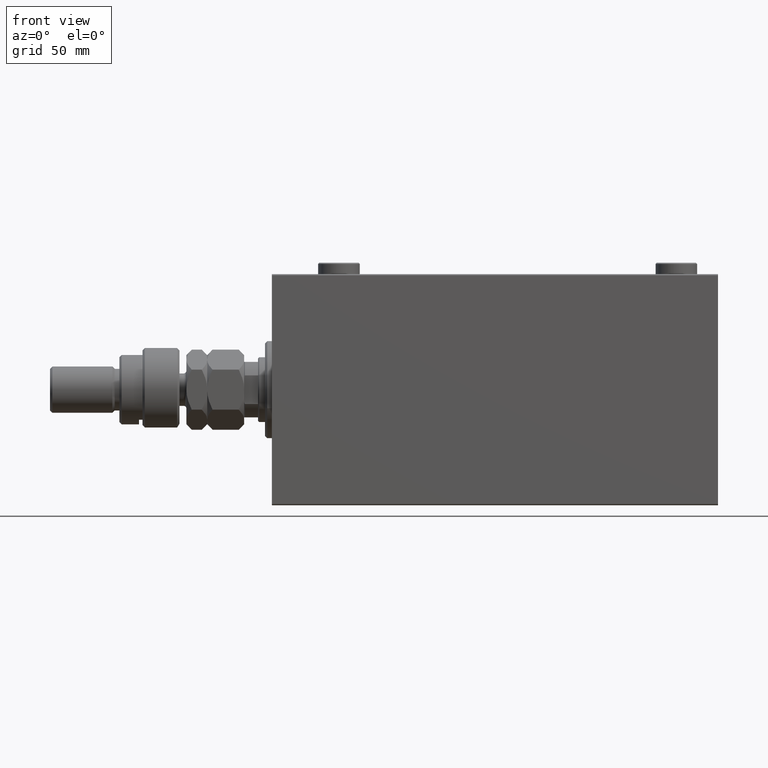
[diagram: clean part render]
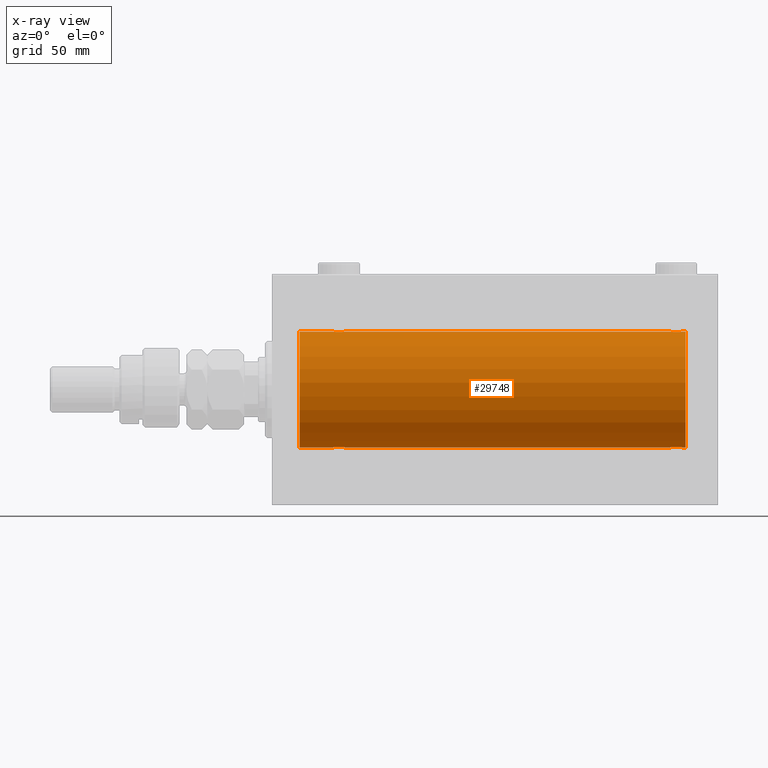
[diagram: x-ray — body ghosted, one internal face saturated and labeled with its STEP entity id]
A machine part, front view, then the same camera in x-ray: the body is ghosted and one INTERNAL B-rep face — a face not visible from any outside direction — is saturated and labeled: STEP entity #29748.
In plain terms, the highlighted cylindrical surface (partial cylindrical patch) has radius 25 mm, axis along (-1, -0, -0).
Its self-contained STEP definition (entity closure, byte-faithful):
#208 = CARTESIAN_POINT ( 'NONE',  ( 26.62784030591392792, -0.8058335233485491855, 24.98746277938382576 ) ) ;
#314 = CARTESIAN_POINT ( 'NONE',  ( 173.0125018416560465, -1.525407911884356205, 24.95379469572361586 ) ) ;
#368 = CYLINDRICAL_SURFACE ( 'NONE', #29054, 25.00000000000000000 ) ;
#445 = CARTESIAN_POINT ( 'NONE',  ( 29.80788342405805480, -2.371528299825740760, -24.88734287464370709 ) ) ;
#542 = CARTESIAN_POINT ( 'NONE',  ( 172.6278403059140203, -0.8058335233485443005, 24.98746277938383287 ) ) ;
#692 = CARTESIAN_POINT ( 'NONE',  ( 31.50000000000000000, 3.061616978460586055E-15, -25.00000000000000000 ) ) ;
#929 = CARTESIAN_POINT ( 'NONE',  ( 30.98749815834398547, -1.525407911884360868, -24.95379469572361941 ) ) ;
#1531 = CARTESIAN_POINT ( 'NONE',  ( 12.00000000000001066, 0.000000000000000000, 25.00000000000000000 ) ) ;
#2097 = CARTESIAN_POINT ( 'NONE',  ( 30.25084023924054932, -2.170728182476720836, 24.90574631553725027 ) ) ;
#2118 = ORIENTED_EDGE ( 'NONE', *, *, #42894, .T. ) ;
#2351 = CARTESIAN_POINT ( 'NONE',  ( 27.88963203491136511, -2.245863995402902269, 24.89899750494197761 ) ) ;
#2721 = ORIENTED_EDGE ( 'NONE', *, *, #18452, .F. ) ;
#2730 = CARTESIAN_POINT ( 'NONE',  ( 172.5000000000000284, -1.405387377138226638E-14, -25.00000000000000000 ) ) ;
#3049 = CARTESIAN_POINT ( 'NONE',  ( 175.6490439016911012, -2.419770561643905804, -24.88263927071751525 ) ) ;
#3131 = B_SPLINE_CURVE_WITH_KNOTS ( 'NONE', 3,
 ( #3389, #18247, #47950, #22367, #18956, #34269, #33783, #929, #41105, #3625, #44529, #30610, #37213, #445, #19189, #30382, #22842, #4102, #8461, #3859, #4577, #8222, #29898, #36971, #29669, #15296, #12113, #26015, #11650, #48195, #15780, #45480 ),
 .UNSPECIFIED., .F., .F.,
 ( 4, 2, 2, 2, 2, 2, 2, 2, 2, 2, 2, 2, 2, 2, 2, 4 ),
 ( 0.007821024441662306759, 0.008309723826317914896, 0.008798423210973524769, 0.009287122595629129437, 0.009775821980284734106, 0.01026452136494033877, 0.01075322074959594344, 0.01124192013425154985, 0.01173061951890715451, 0.01221931890356275918, 0.01270801828821836385, 0.01319671767287396852, 0.01368541705752957492, 0.01417411644218518132, 0.01466281582684078599, 0.01564021459615200227 ),
 .UNSPECIFIED. ) ;
#3182 = CARTESIAN_POINT ( 'NONE',  ( 26.50000000000000355, -1.940558383798427991E-23, 25.00000000000000000 ) ) ;
#3184 = ORIENTED_EDGE ( 'NONE', *, *, #40856, .T. ) ;
#3297 = CARTESIAN_POINT ( 'NONE',  ( 177.3721596940860366, -0.8058335233485425242, -24.98746277938382221 ) ) ;
#3389 = CARTESIAN_POINT ( 'NONE',  ( 31.50000000000000000, 3.061616978460586055E-15, -25.00000000000000000 ) ) ;
#3530 = CARTESIAN_POINT ( 'NONE',  ( 174.3543933385137450, -2.420689345803768155, -24.88254961038873603 ) ) ;
#3625 = CARTESIAN_POINT ( 'NONE',  ( 30.65383336149337623, -1.881857718844712979, -24.92933960374833902 ) ) ;
#3725 = CARTESIAN_POINT ( 'NONE',  ( 172.5000000000000853, -0.1631750940176186493, 25.00000000000001066 ) ) ;
#3848 = CARTESIAN_POINT ( 'NONE',  ( 26.50000000000000355, -1.940558383798427991E-23, 25.00000000000000000 ) ) ;
#3859 = CARTESIAN_POINT ( 'NONE',  ( 28.35439333851368104, -2.420689345803754833, -24.88254961038873248 ) ) ;
#4024 = VERTEX_POINT ( 'NONE', #47860 ) ;
#4102 = CARTESIAN_POINT ( 'NONE',  ( 28.83676410361456988, -2.500125740978188738, -24.87467329022545570 ) ) ;
#4352 = DIRECTION ( 'NONE',  ( -1.000000000000000000, -0.000000000000000000, -0.000000000000000000 ) ) ;
#4529 = B_SPLINE_CURVE_WITH_KNOTS ( 'NONE', 3,
 ( #37069, #3725, #7618, #22464, #542, #22706, #15642, #314, #44391, #34118, #11511, #29996, #41205, #11275, #44866, #15397, #10795, #18579, #30235, #21990, #26591, #41443, #8090, #33166, #22935, #25634, #36830, #48052, #14679, #29526, #11045, #42146 ),
 .UNSPECIFIED., .F., .F.,
 ( 4, 2, 2, 2, 2, 2, 2, 2, 2, 2, 2, 2, 2, 2, 2, 4 ),
 ( 0.007821024441662296350, 0.008309723826317906223, 0.008798423210973516095, 0.009287122595629124233, 0.009775821980284732371, 0.01026452136494034224, 0.01075322074959595212, 0.01124192013425156025, 0.01173061951890716839, 0.01221931890356277826, 0.01270801828821838814, 0.01319671767287399627, 0.01368541705752960788, 0.01417411644218521602, 0.01466281582684082589, 0.01564021459615201268 ),
 .UNSPECIFIED. ) ;
#4577 = CARTESIAN_POINT ( 'NONE',  ( 28.19564339083698457, -2.372734907014167227, -24.88722742718433878 ) ) ;
#5026 = CARTESIAN_POINT ( 'NONE',  ( 27.34616663850663443, -1.881857718844720528, 24.92933960374834967 ) ) ;
#5543 = CARTESIAN_POINT ( 'NONE',  ( 179.0000000000000000, 3.061616997868382254E-15, -25.00000000000000000 ) ) ;
#5559 = EDGE_CURVE ( 'NONE', #10784, #43455, #15232, .T. ) ;
#5627 = VERTEX_POINT ( 'NONE', #30771 ) ;
#5754 = CARTESIAN_POINT ( 'NONE',  ( 29.32596570039460104, -2.484007091859765204, 24.87630842367763506 ) ) ;
#5978 = LINE ( 'NONE', #29825, #16130 ) ;
#5988 = CARTESIAN_POINT ( 'NONE',  ( 30.88185954148647028, -1.653834020452937592, 24.94550385189585029 ) ) ;
#6094 = ORIENTED_EDGE ( 'NONE', *, *, #30672, .T. ) ;
#6272 = LINE ( 'NONE', #5543, #17013 ) ;
#6324 = AXIS2_PLACEMENT_3D ( 'NONE', #31363, #28447, #34777 ) ;
#6694 = CARTESIAN_POINT ( 'NONE',  ( 176.1103679650886988, -2.245863995402892943, -24.89899750494197406 ) ) ;
#7618 = CARTESIAN_POINT ( 'NONE',  ( 172.5158215994234752, -0.3254210271412208977, 24.99840249400844527 ) ) ;
#8090 = CARTESIAN_POINT ( 'NONE',  ( 176.2508402392405458, -2.170728182476725276, 24.90574631553724672 ) ) ;
#8222 = CARTESIAN_POINT ( 'NONE',  ( 27.89276154161589716, -2.247417070759890390, -24.89885693081946982 ) ) ;
#8317 = EDGE_CURVE ( 'NONE', #8360, #36444, #3131, .T. ) ;
#8360 = VERTEX_POINT ( 'NONE', #692 ) ;
#8461 = CARTESIAN_POINT ( 'NONE',  ( 28.67403429960540251, -2.484007091859758098, -24.87630842367763151 ) ) ;
#8539 = CARTESIAN_POINT ( 'NONE',  ( 177.5000000000000568, 1.404322005998729010E-15, 25.00000000000000000 ) ) ;
#8622 = DIRECTION ( 'NONE',  ( 0.000000000000000000, 0.000000000000000000, 1.000000000000000000 ) ) ;
#9194 = EDGE_CURVE ( 'NONE', #48076, #4024, #26510, .T. ) ;
#10463 = EDGE_CURVE ( 'NONE', #5627, #42346, #24485, .T. ) ;
#10595 = CARTESIAN_POINT ( 'NONE',  ( 174.8367641036146551, -2.500125740978199840, -24.87467329022544504 ) ) ;
#10784 = VERTEX_POINT ( 'NONE', #3182 ) ;
#10795 = CARTESIAN_POINT ( 'NONE',  ( 174.8329350482194116, -2.499872792855079240, 24.87469871246083031 ) ) ;
#10843 = CARTESIAN_POINT ( 'NONE',  ( 175.8078834240581614, -2.371528299825743868, -24.88734287464371420 ) ) ;
#11045 = CARTESIAN_POINT ( 'NONE',  ( 177.5000000000000568, -0.3305063766663748903, 24.99999999999999289 ) ) ;
#11088 = CARTESIAN_POINT ( 'NONE',  ( 174.6740342996054380, -2.484007091859770089, -24.87630842367762796 ) ) ;
#11275 = CARTESIAN_POINT ( 'NONE',  ( 174.1921165759419523, -2.371528299825747421, 24.88734287464370709 ) ) ;
#11511 = CARTESIAN_POINT ( 'NONE',  ( 173.4746381775692612, -1.987446652080256948, 24.92104239223420592 ) ) ;
#11650 = CARTESIAN_POINT ( 'NONE',  ( 26.75393620905932934, -1.109818057797413493, -24.97580694515541921 ) ) ;
#11872 = CARTESIAN_POINT ( 'NONE',  ( 26.51582159942343253, -0.3254210271412225075, 24.99840249400844527 ) ) ;
#12113 = CARTESIAN_POINT ( 'NONE',  ( 27.01461966282905891, -1.528152964861305696, -24.95362559291378801 ) ) ;
#12586 = CARTESIAN_POINT ( 'NONE',  ( 29.64560666148631896, -2.420689345803760606, 24.88254961038873958 ) ) ;
#13091 = VECTOR ( 'NONE', #47641, 1000.000000000000000 ) ;
#13544 = CARTESIAN_POINT ( 'NONE',  ( 26.50000000000000355, -1.044046902370982825E-15, -25.00000000000000000 ) ) ;
#13550 = CARTESIAN_POINT ( 'NONE',  ( 28.67052319885731393, -2.483544361357271413, 24.87635491893501793 ) ) ;
#14248 = CARTESIAN_POINT ( 'NONE',  ( 173.3487886644088860, -1.884161199660627783, -24.92916496727982079 ) ) ;
#14441 = ORIENTED_EDGE ( 'NONE', *, *, #23900, .F. ) ;
#14483 = CARTESIAN_POINT ( 'NONE',  ( 177.2476025101955486, -1.106703319666879848, -24.97594585958023572 ) ) ;
#14623 = CARTESIAN_POINT ( 'NONE',  ( 179.0000000000000000, 0.000000000000000000, 25.00000000000000000 ) ) ;
#14679 = CARTESIAN_POINT ( 'NONE',  ( 177.2460637909407524, -1.109818057797409718, 24.97580694515542632 ) ) ;
#14728 = CARTESIAN_POINT ( 'NONE',  ( 172.7539362090593897, -1.109818057797422375, -24.97580694515542632 ) ) ;
#14756 = CARTESIAN_POINT ( 'NONE',  ( 179.0000000000000000, 0.000000000000000000, 25.00000000000000000 ) ) ;
#15232 = LINE ( 'NONE', #14756, #13091 ) ;
#15296 = CARTESIAN_POINT ( 'NONE',  ( 27.11814045851354749, -1.653834020452933373, -24.94550385189585739 ) ) ;
#15397 = CARTESIAN_POINT ( 'NONE',  ( 174.6705231988573530, -2.483544361357268304, 24.87635491893501793 ) ) ;
#15594 = VECTOR ( 'NONE', #17036, 1000.000000000000000 ) ;
#15642 = CARTESIAN_POINT ( 'NONE',  ( 172.8298870971908343, -1.252049606094326695, 24.96900299967627390 ) ) ;
#15780 = CARTESIAN_POINT ( 'NONE',  ( 26.50000000000000000, -0.3305063766663753899, -24.99999999999999645 ) ) ;
#16130 = VECTOR ( 'NONE', #25696, 1000.000000000000000 ) ;
#16351 = DIRECTION ( 'NONE',  ( 0.000000000000000000, 0.000000000000000000, 1.000000000000000000 ) ) ;
#16785 = B_SPLINE_CURVE_WITH_KNOTS ( 'NONE', 3,
 ( #3848, #18709, #11872, #23062, #208, #37915, #23766, #42774, #31068, #5026, #38390, #24494, #2351, #17198, #45942, #13550, #16955, #39113, #5754, #12586, #35694, #38621, #2097, #27422, #46179, #5988, #42276, #31794, #32033, #28156, #20606, #42040 ),
 .UNSPECIFIED., .F., .F.,
 ( 4, 2, 2, 2, 2, 2, 2, 2, 2, 2, 2, 2, 2, 2, 2, 4 ),
 ( 0.007821024441662294616, 0.008309723826317901019, 0.008798423210973509156, 0.009287122595629115560, 0.009775821980284721963, 0.01026452136494032837, 0.01075322074959593477, 0.01124192013425154291, 0.01173061951890714757, 0.01221931890356275571, 0.01270801828821836212, 0.01319671767287396852, 0.01368541705752957666, 0.01417411644218518479, 0.01466281582684079120, 0.01564021459615200574 ),
 .UNSPECIFIED. ) ;
#16955 = CARTESIAN_POINT ( 'NONE',  ( 28.83293504821940445, -2.499872792855083681, 24.87469871246083031 ) ) ;
#17013 = VECTOR ( 'NONE', #17237, 1000.000000000000000 ) ;
#17036 = DIRECTION ( 'NONE',  ( -1.000000000000000000, -0.000000000000000000, -0.000000000000000000 ) ) ;
#17198 = CARTESIAN_POINT ( 'NONE',  ( 28.19211657594193809, -2.371528299825748753, 24.88734287464370709 ) ) ;
#17237 = DIRECTION ( 'NONE',  ( -1.000000000000000000, -0.000000000000000000, -0.000000000000000000 ) ) ;
#17660 = CARTESIAN_POINT ( 'NONE',  ( 177.4841784005766101, -0.3254210271412171229, -24.99840249400844527 ) ) ;
#18152 = CARTESIAN_POINT ( 'NONE',  ( 172.5000000000000284, -1.405387377138226638E-14, -25.00000000000000000 ) ) ;
#18247 = CARTESIAN_POINT ( 'NONE',  ( 31.49999999999998579, -0.1631750940176181774, -25.00000000000000355 ) ) ;
#18384 = CARTESIAN_POINT ( 'NONE',  ( 172.5000000000000853, -0.3305063766663885461, -25.00000000000001066 ) ) ;
#18452 = EDGE_CURVE ( 'NONE', #27088, #42459, #38952, .T. ) ;
#18579 = CARTESIAN_POINT ( 'NONE',  ( 175.1632358963854585, -2.500125740978193178, 24.87467329022544504 ) ) ;
#18709 = CARTESIAN_POINT ( 'NONE',  ( 26.50000000000000355, -0.1631750940176212028, 25.00000000000000355 ) ) ;
#18793 = CIRCLE ( 'NONE', #6324, 25.00000000000000000 ) ;
#18956 = CARTESIAN_POINT ( 'NONE',  ( 31.37215969408608274, -0.8058335233485440785, -24.98746277938383997 ) ) ;
#19189 = CARTESIAN_POINT ( 'NONE',  ( 29.64904390169096970, -2.419770561643903584, -24.88263927071751525 ) ) ;
#20606 = CARTESIAN_POINT ( 'NONE',  ( 31.50000000000000000, -0.3305063766663733360, 25.00000000000000000 ) ) ;
#21546 = CARTESIAN_POINT ( 'NONE',  ( 176.6538333614934402, -1.881857718844723415, -24.92933960374834257 ) ) ;
#21990 = CARTESIAN_POINT ( 'NONE',  ( 175.6456066614863403, -2.420689345803761938, 24.88254961038872892 ) ) ;
#22037 = CARTESIAN_POINT ( 'NONE',  ( 173.0146196628291193, -1.528152964861322793, -24.95362559291379156 ) ) ;
#22367 = CARTESIAN_POINT ( 'NONE',  ( 31.42014909220928942, -0.6480119923854199548, -24.99212088949390775 ) ) ;
#22464 = CARTESIAN_POINT ( 'NONE',  ( 172.5798509077907568, -0.6480119923854213981, 24.99212088949391131 ) ) ;
#22566 = DIRECTION ( 'NONE',  ( -1.000000000000000000, -0.000000000000000000, -0.000000000000000000 ) ) ;
#22706 = CARTESIAN_POINT ( 'NONE',  ( 172.7523974898044798, -1.106703319666880958, 24.97594585958023217 ) ) ;
#22842 = CARTESIAN_POINT ( 'NONE',  ( 29.16706495178059910, -2.499872792855075687, -24.87469871246082320 ) ) ;
#22935 = CARTESIAN_POINT ( 'NONE',  ( 176.6512113355912277, -1.884161199660621344, 24.92916496727982789 ) ) ;
#23062 = CARTESIAN_POINT ( 'NONE',  ( 26.57985090779071058, -0.6480119923854229524, 24.99212088949391131 ) ) ;
#23318 = ORIENTED_EDGE ( 'NONE', *, *, #5559, .F. ) ;
#23382 = VERTEX_POINT ( 'NONE', #45936 ) ;
#23469 = CARTESIAN_POINT ( 'NONE',  ( 179.0000000000000000, 0.000000000000000000, 0.000000000000000000 ) ) ;
#23766 = CARTESIAN_POINT ( 'NONE',  ( 26.82988709719076681, -1.252049606094339351, 24.96900299967627390 ) ) ;
#23900 = EDGE_CURVE ( 'NONE', #35274, #27088, #18793, .T. ) ;
#24309 = EDGE_CURVE ( 'NONE', #10784, #4024, #16785, .T. ) ;
#24485 = B_SPLINE_CURVE_WITH_KNOTS ( 'NONE', 3,
 ( #47127, #43946, #17660, #25683, #3297, #14483, #47613, #40054, #28850, #21546, #33218, #40777, #6694, #10843, #3049, #37114, #36876, #10595, #11088, #3530, #25191, #47375, #43706, #47856, #14248, #43467, #22037, #25433, #14728, #29326, #18384, #18152 ),
 .UNSPECIFIED., .F., .F.,
 ( 4, 2, 2, 2, 2, 2, 2, 2, 2, 2, 2, 2, 2, 2, 2, 4 ),
 ( 0.007821024441662285942, 0.008309723826317894080, 0.008798423210973503952, 0.009287122595629112090, 0.009775821980284720228, 0.01026452136494033010, 0.01075322074959593824, 0.01124192013425154638, 0.01173061951890715451, 0.01221931890356276265, 0.01270801828821837426, 0.01319671767287398240, 0.01368541705752959053, 0.01417411644218519867, 0.01466281582684080681, 0.01564021459615199186 ),
 .UNSPECIFIED. ) ;
#24494 = CARTESIAN_POINT ( 'NONE',  ( 27.74616804575498463, -2.169003991399872433, 24.90589728951139392 ) ) ;
#25191 = CARTESIAN_POINT ( 'NONE',  ( 174.1956433908370343, -2.372734907014177885, -24.88722742718433523 ) ) ;
#25433 = CARTESIAN_POINT ( 'NONE',  ( 172.8317235850605300, -1.255214705003193432, -24.96884293994577675 ) ) ;
#25634 = CARTESIAN_POINT ( 'NONE',  ( 176.8818595414865058, -1.653834020452942477, 24.94550385189585029 ) ) ;
#25683 = CARTESIAN_POINT ( 'NONE',  ( 177.4201490922093285, -0.6480119923854171793, -24.99212088949391131 ) ) ;
#25696 = DIRECTION ( 'NONE',  ( -1.000000000000000000, -0.000000000000000000, -0.000000000000000000 ) ) ;
#26015 = CARTESIAN_POINT ( 'NONE',  ( 26.83172358506043409, -1.255214705003176112, -24.96884293994578385 ) ) ;
#26510 = LINE ( 'NONE', #34041, #33964 ) ;
#26591 = CARTESIAN_POINT ( 'NONE',  ( 175.8043566091631078, -2.372734907014173000, 24.88722742718433878 ) ) ;
#27088 = VERTEX_POINT ( 'NONE', #14623 ) ;
#27126 = ORIENTED_EDGE ( 'NONE', *, *, #9194, .F. ) ;
#27422 = CARTESIAN_POINT ( 'NONE',  ( 30.52256774340189338, -1.989585286700246813, 24.92087098724766037 ) ) ;
#28156 = CARTESIAN_POINT ( 'NONE',  ( 31.43349355239748277, -0.6588655613945849643, 24.99312727339970053 ) ) ;
#28447 = DIRECTION ( 'NONE',  ( -1.000000000000000000, 0.000000000000000000, 0.000000000000000000 ) ) ;
#28850 = CARTESIAN_POINT ( 'NONE',  ( 176.8841238278647552, -1.651251241585108165, -24.94567559498349141 ) ) ;
#29054 = AXIS2_PLACEMENT_3D ( 'NONE', #23469, #30295, #8622 ) ;
#29326 = CARTESIAN_POINT ( 'NONE',  ( 172.5665064476025066, -0.6588655613945925138, -24.99312727339970408 ) ) ;
#29526 = CARTESIAN_POINT ( 'NONE',  ( 177.4334935523975787, -0.6588655613945811895, 24.99312727339969697 ) ) ;
#29669 = CARTESIAN_POINT ( 'NONE',  ( 27.34878866440888245, -1.884161199660611574, -24.92916496727982079 ) ) ;
#29748 = ADVANCED_FACE ( 'NONE', ( #37614 ), #368, .F. ) ;
#29825 = CARTESIAN_POINT ( 'NONE',  ( 179.0000000000000000, 3.061616997868382254E-15, -25.00000000000000000 ) ) ;
#29898 = CARTESIAN_POINT ( 'NONE',  ( 27.74915976075944712, -2.170728182476712842, -24.90574631553725027 ) ) ;
#29996 = CARTESIAN_POINT ( 'NONE',  ( 173.7461680457549846, -2.169003991399866216, 24.90589728951138682 ) ) ;
#30235 = CARTESIAN_POINT ( 'NONE',  ( 175.3259657003945904, -2.484007091859763872, 24.87630842367762796 ) ) ;
#30295 = DIRECTION ( 'NONE',  ( -1.000000000000000000, -0.000000000000000000, -0.000000000000000000 ) ) ;
#30382 = CARTESIAN_POINT ( 'NONE',  ( 29.32947680114268962, -2.483544361357263863, -24.87635491893501083 ) ) ;
#30610 = CARTESIAN_POINT ( 'NONE',  ( 30.25383195424502603, -2.169003991399864439, -24.90589728951138326 ) ) ;
#30672 = EDGE_CURVE ( 'NONE', #42346, #8360, #37418, .T. ) ;
#30771 = CARTESIAN_POINT ( 'NONE',  ( 177.5000000000000568, 3.061616978453880738E-15, -25.00000000000000000 ) ) ;
#31068 = CARTESIAN_POINT ( 'NONE',  ( 27.11587617213528745, -1.651251241585106166, 24.94567559498348430 ) ) ;
#31363 = CARTESIAN_POINT ( 'NONE',  ( 179.0000000000000000, 0.000000000000000000, 0.000000000000000000 ) ) ;
#31772 = ORIENTED_EDGE ( 'NONE', *, *, #8317, .T. ) ;
#31794 = CARTESIAN_POINT ( 'NONE',  ( 31.16827641493957302, -1.255214705003178777, 24.96884293994577675 ) ) ;
#32033 = CARTESIAN_POINT ( 'NONE',  ( 31.24606379094067776, -1.109818057797414381, 24.97580694515543343 ) ) ;
#32640 = ORIENTED_EDGE ( 'NONE', *, *, #36064, .T. ) ;
#33023 = EDGE_LOOP ( 'NONE', ( #14441, #3184, #34511, #6094, #31772, #2118, #36198, #23318, #37092, #27126, #32640, #2721 ) ) ;
#33166 = CARTESIAN_POINT ( 'NONE',  ( 176.5225677434019076, -1.989585286700252809, 24.92087098724766747 ) ) ;
#33218 = CARTESIAN_POINT ( 'NONE',  ( 176.5253618224308525, -1.987446652080262943, -24.92104239223420592 ) ) ;
#33783 = CARTESIAN_POINT ( 'NONE',  ( 31.17011290280924385, -1.252049606094333800, -24.96900299967627390 ) ) ;
#33964 = VECTOR ( 'NONE', #4352, 1000.000000000000000 ) ;
#34041 = CARTESIAN_POINT ( 'NONE',  ( 179.0000000000000000, 0.000000000000000000, 25.00000000000000000 ) ) ;
#34118 = CARTESIAN_POINT ( 'NONE',  ( 173.3461666385066451, -1.881857718844717642, 24.92933960374833546 ) ) ;
#34269 = CARTESIAN_POINT ( 'NONE',  ( 31.24760251019550594, -1.106703319666880736, -24.97594585958023572 ) ) ;
#34407 = CARTESIAN_POINT ( 'NONE',  ( 179.0000000000000000, 3.061616997868382254E-15, -25.00000000000000000 ) ) ;
#34511 = ORIENTED_EDGE ( 'NONE', *, *, #10463, .T. ) ;
#34777 = DIRECTION ( 'NONE',  ( 0.000000000000000000, 0.000000000000000000, 1.000000000000000000 ) ) ;
#35274 = VERTEX_POINT ( 'NONE', #34407 ) ;
#35694 = CARTESIAN_POINT ( 'NONE',  ( 29.80435660916302609, -2.372734907014173888, 24.88722742718433878 ) ) ;
#36064 = EDGE_CURVE ( 'NONE', #48076, #42459, #4529, .T. ) ;
#36198 = ORIENTED_EDGE ( 'NONE', *, *, #41238, .T. ) ;
#36444 = VERTEX_POINT ( 'NONE', #13544 ) ;
#36830 = CARTESIAN_POINT ( 'NONE',  ( 176.9853803371709944, -1.528152964861297258, 24.95362559291378446 ) ) ;
#36876 = CARTESIAN_POINT ( 'NONE',  ( 175.1670649517807306, -2.499872792855085013, -24.87469871246083031 ) ) ;
#36971 = CARTESIAN_POINT ( 'NONE',  ( 27.47743225659811017, -1.989585286700239486, -24.92087098724765326 ) ) ;
#37069 = CARTESIAN_POINT ( 'NONE',  ( 172.5000000000000284, -1.941505016884693205E-23, 25.00000000000000000 ) ) ;
#37092 = ORIENTED_EDGE ( 'NONE', *, *, #24309, .T. ) ;
#37114 = CARTESIAN_POINT ( 'NONE',  ( 175.3294768011428175, -2.483544361357270969, -24.87635491893502149 ) ) ;
#37213 = CARTESIAN_POINT ( 'NONE',  ( 30.11036796508863844, -2.245863995402894719, -24.89899750494197406 ) ) ;
#37418 = LINE ( 'NONE', #44727, #44644 ) ;
#37614 = FACE_OUTER_BOUND ( 'NONE', #33023, .T. ) ;
#37915 = CARTESIAN_POINT ( 'NONE',  ( 26.75239748980448340, -1.106703319666886731, 24.97594585958023572 ) ) ;
#38390 = CARTESIAN_POINT ( 'NONE',  ( 27.47463817756919724, -1.987446652080264275, 24.92104239223420592 ) ) ;
#38465 = CARTESIAN_POINT ( 'NONE',  ( 179.0000000000000000, 0.000000000000000000, 25.00000000000000000 ) ) ;
#38621 = CARTESIAN_POINT ( 'NONE',  ( 30.10723845838410639, -2.247417070759895719, 24.89885693081946272 ) ) ;
#38743 = DIRECTION ( 'NONE',  ( -1.000000000000000000, 0.000000000000000000, 0.000000000000000000 ) ) ;
#38952 = LINE ( 'NONE', #38465, #15594 ) ;
#39113 = CARTESIAN_POINT ( 'NONE',  ( 29.16323589638543723, -2.500125740978196731, 24.87467329022545570 ) ) ;
#40054 = CARTESIAN_POINT ( 'NONE',  ( 176.9874981583440672, -1.525407911884359535, -24.95379469572363007 ) ) ;
#40777 = CARTESIAN_POINT ( 'NONE',  ( 176.2538319542450722, -2.169003991399872433, -24.90589728951138326 ) ) ;
#40856 = EDGE_CURVE ( 'NONE', #35274, #5627, #5978, .T. ) ;
#41105 = CARTESIAN_POINT ( 'NONE',  ( 30.88412382786472321, -1.651251241585099061, -24.94567559498349496 ) ) ;
#41205 = CARTESIAN_POINT ( 'NONE',  ( 173.8896320349113864, -2.245863995402900049, 24.89899750494197050 ) ) ;
#41238 = EDGE_CURVE ( 'NONE', #23382, #43455, #44943, .T. ) ;
#41443 = CARTESIAN_POINT ( 'NONE',  ( 176.1072384583841028, -2.247417070759893942, 24.89885693081946627 ) ) ;
#41974 = CARTESIAN_POINT ( 'NONE',  ( 172.5000000000000284, -1.941505016884693205E-23, 25.00000000000000000 ) ) ;
#42040 = CARTESIAN_POINT ( 'NONE',  ( 31.50000000000000000, -4.224067783497237755E-16, 25.00000000000000000 ) ) ;
#42146 = CARTESIAN_POINT ( 'NONE',  ( 177.5000000000000568, 1.404322005998729010E-15, 25.00000000000000000 ) ) ;
#42276 = CARTESIAN_POINT ( 'NONE',  ( 30.98538033717095530, -1.528152964861310359, 24.95362559291379156 ) ) ;
#42346 = VERTEX_POINT ( 'NONE', #2730 ) ;
#42459 = VERTEX_POINT ( 'NONE', #8539 ) ;
#42597 = AXIS2_PLACEMENT_3D ( 'NONE', #45356, #38743, #16351 ) ;
#42774 = CARTESIAN_POINT ( 'NONE',  ( 27.01250184165601809, -1.525407911884366863, 24.95379469572362297 ) ) ;
#42894 = EDGE_CURVE ( 'NONE', #36444, #23382, #6272, .T. ) ;
#43455 = VERTEX_POINT ( 'NONE', #1531 ) ;
#43467 = CARTESIAN_POINT ( 'NONE',  ( 173.1181404585136079, -1.653834020452949805, -24.94550385189584674 ) ) ;
#43706 = CARTESIAN_POINT ( 'NONE',  ( 173.7491597607594542, -2.170728182476731938, -24.90574631553725027 ) ) ;
#43946 = CARTESIAN_POINT ( 'NONE',  ( 177.5000000000000568, -0.1631750940176158182, -25.00000000000000000 ) ) ;
#44391 = CARTESIAN_POINT ( 'NONE',  ( 173.1158761721353585, -1.651251241585103724, 24.94567559498349141 ) ) ;
#44529 = CARTESIAN_POINT ( 'NONE',  ( 30.52536182243081342, -1.987446652080257392, -24.92104239223420592 ) ) ;
#44644 = VECTOR ( 'NONE', #22566, 1000.000000000000000 ) ;
#44727 = CARTESIAN_POINT ( 'NONE',  ( 179.0000000000000000, 3.061616997868382254E-15, -25.00000000000000000 ) ) ;
#44866 = CARTESIAN_POINT ( 'NONE',  ( 174.3509560983091262, -2.419770561643906248, 24.88263927071751169 ) ) ;
#44943 = CIRCLE ( 'NONE', #42597, 25.00000000000000000 ) ;
#45356 = CARTESIAN_POINT ( 'NONE',  ( 12.00000000000001066, 0.000000000000000000, 0.000000000000000000 ) ) ;
#45480 = CARTESIAN_POINT ( 'NONE',  ( 26.50000000000000355, -1.044046902370982825E-15, -25.00000000000000000 ) ) ;
#45936 = CARTESIAN_POINT ( 'NONE',  ( 12.00000000000001066, 3.061616997868382254E-15, -25.00000000000000000 ) ) ;
#45942 = CARTESIAN_POINT ( 'NONE',  ( 28.35095609830903740, -2.419770561643910689, 24.88263927071751169 ) ) ;
#46179 = CARTESIAN_POINT ( 'NONE',  ( 30.65121133559112820, -1.884161199660616459, 24.92916496727982434 ) ) ;
#47127 = CARTESIAN_POINT ( 'NONE',  ( 177.5000000000000568, 3.061616978453880738E-15, -25.00000000000000000 ) ) ;
#47375 = CARTESIAN_POINT ( 'NONE',  ( 173.8927615416159540, -2.247417070759900604, -24.89885693081946627 ) ) ;
#47613 = CARTESIAN_POINT ( 'NONE',  ( 177.1701129028093078, -1.252049606094329581, -24.96900299967627745 ) ) ;
#47641 = DIRECTION ( 'NONE',  ( -1.000000000000000000, -0.000000000000000000, -0.000000000000000000 ) ) ;
#47856 = CARTESIAN_POINT ( 'NONE',  ( 173.4774322565981777, -1.989585286700259248, -24.92087098724765681 ) ) ;
#47860 = CARTESIAN_POINT ( 'NONE',  ( 31.50000000000000000, -4.224067783497237755E-16, 25.00000000000000000 ) ) ;
#47950 = CARTESIAN_POINT ( 'NONE',  ( 31.48417840057656747, -0.3254210271412201205, -24.99840249400844527 ) ) ;
#48052 = CARTESIAN_POINT ( 'NONE',  ( 177.1682764149396121, -1.255214705003166564, 24.96884293994578385 ) ) ;
#48076 = VERTEX_POINT ( 'NONE', #41974 ) ;
#48195 = CARTESIAN_POINT ( 'NONE',  ( 26.56650644760252789, -0.6588655613945865186, -24.99312727339970053 ) ) ;